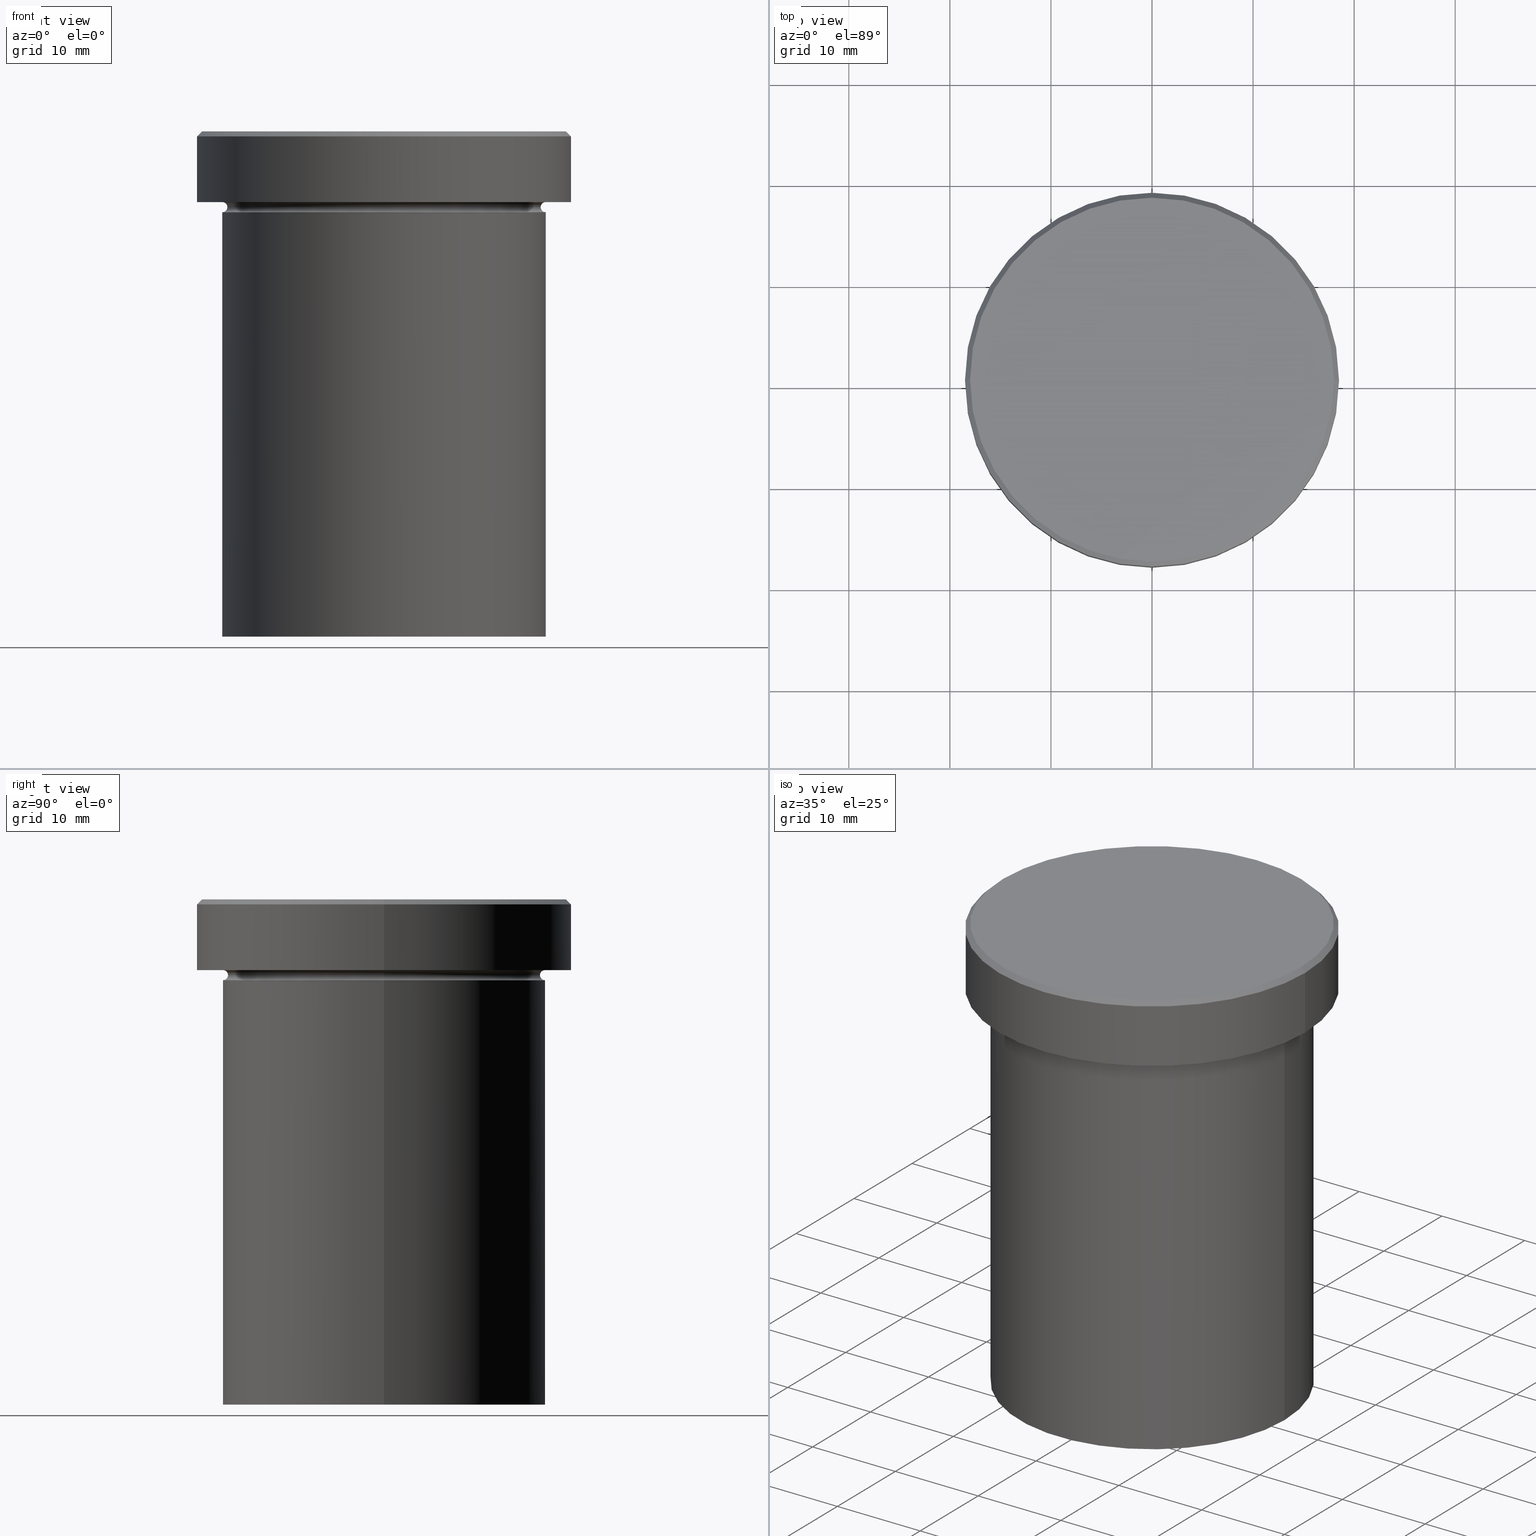
[diagram: canonical four-view strip — front | top / right | iso, engineering-drawing reading convention]
A machine part, canonical four-view strip (front | top / right | iso — engineering-drawing reading convention). The complete STEP part file that produces these views, byte-faithful:
ISO-10303-21;
HEADER;
FILE_DESCRIPTION (( 'STEP AP203' ),
    '1' );
FILE_NAME ('8fc4.STEP',
    '2024-01-02T19:16:12',
    ( '' ),
    ( '' ),
    'SwSTEP 2.0',
    'SolidWorks 2019',
    '' );
FILE_SCHEMA (( 'CONFIG_CONTROL_DESIGN' ));
ENDSEC;

DATA;
#1 = DIRECTION ( 'NONE',  ( -0.000000000000000000, -0.000000000000000000, 1.000000000000000000 ) ) ;
#2 = CIRCLE ( 'NONE', #320, 0.5000000000000004441 ) ;
#3 = AXIS2_PLACEMENT_3D ( 'NONE', #208, #327, #11 ) ;
#4 = CARTESIAN_POINT ( 'NONE',  ( 0.000000000000000000, 0.000000000000000000, 0.000000000000000000 ) ) ;
#5 = ORIENTED_EDGE ( 'NONE', *, *, #288, .T. ) ;
#6 = ADVANCED_FACE ( 'NONE', ( #122 ), #212, .T. ) ;
#7 = CARTESIAN_POINT ( 'NONE',  ( 0.000000000000000000, 0.000000000000000000, -8.000000000000000000 ) ) ;
#8 = ORIENTED_EDGE ( 'NONE', *, *, #131, .F. ) ;
#9 = EDGE_LOOP ( 'NONE', ( #8, #111, #396, #192 ) ) ;
#10 = VERTEX_POINT ( 'NONE', #147 ) ;
#11 = DIRECTION ( 'NONE',  ( 1.000000000000000000, 0.000000000000000000, 0.000000000000000000 ) ) ;
#12 = CARTESIAN_POINT ( 'NONE',  ( -18.00000000000000355, 0.000000000000000000, 0.000000000000000000 ) ) ;
#13 = EDGE_CURVE ( 'NONE', #177, #10, #153, .T. ) ;
#14 = DIRECTION ( 'NONE',  ( -0.000000000000000000, -0.000000000000000000, 1.000000000000000000 ) ) ;
#15 = DIRECTION ( 'NONE',  ( 1.000000000000000000, 0.000000000000000000, 0.000000000000000000 ) ) ;
#16 = AXIS2_PLACEMENT_3D ( 'NONE', #338, #90, #201 ) ;
#17 = CC_DESIGN_DATE_AND_TIME_ASSIGNMENT ( #188, #125, ( #368 ) ) ;
#18 = CIRCLE ( 'NONE', #348, 18.50000000000000000 ) ;
#19 = CYLINDRICAL_SURFACE ( 'NONE', #377, 16.00000000000000000 ) ;
#20 = DIRECTION ( 'NONE',  ( -0.000000000000000000, -0.000000000000000000, 1.000000000000000000 ) ) ;
#21 = CIRCLE ( 'NONE', #299, 16.00000000000000000 ) ;
#22 = EDGE_CURVE ( 'NONE', #76, #79, #268, .T. ) ;
#23 = CARTESIAN_POINT ( 'NONE',  ( 0.000000000000000000, 0.000000000000000000, -0.5000000000000004441 ) ) ;
#24 = EDGE_LOOP ( 'NONE', ( #84, #140, #51, #175 ) ) ;
#25 = CARTESIAN_POINT ( 'NONE',  ( 0.000000000000000000, 0.000000000000000000, 0.000000000000000000 ) ) ;
#26 = VERTEX_POINT ( 'NONE', #305 ) ;
#27 = APPLICATION_PROTOCOL_DEFINITION ( 'international standard', 'config_control_design', 1994, #402 ) ;
#28 = FACE_OUTER_BOUND ( 'NONE', #9, .T. ) ;
#29 = CIRCLE ( 'NONE', #258, 16.00000000000000000 ) ;
#30 = PERSON_AND_ORGANIZATION ( #290, #216 ) ;
#31 = LINE ( 'NONE', #280, #141 ) ;
#32 = EDGE_CURVE ( 'NONE', #107, #296, #318, .T. ) ;
#33 = APPROVAL_STATUS ( 'not_yet_approved' ) ;
#34 = CARTESIAN_POINT ( 'NONE',  ( -16.00000000000000000, 1.959434878635765131E-15, -7.500000000000000000 ) ) ;
#35 = AXIS2_PLACEMENT_3D ( 'NONE', #38, #133, #249 ) ;
#36 = EDGE_CURVE ( 'NONE', #143, #10, #93, .T. ) ;
#37 = DATE_AND_TIME ( #69, #406 ) ;
#38 = CARTESIAN_POINT ( 'NONE',  ( 0.000000000000000000, 0.000000000000000000, -7.500000000000000000 ) ) ;
#39 = DESIGN_CONTEXT ( 'detailed design', #392, 'design' ) ;
#40 = EDGE_CURVE ( 'NONE', #113, #177, #65, .T. ) ;
#41 = VECTOR ( 'NONE', #245, 1000.000000000000114 ) ;
#42 = CARTESIAN_POINT ( 'NONE',  ( 15.50000000000000000, 0.000000000000000000, -7.500000000000000000 ) ) ;
#43 = ORIENTED_EDGE ( 'NONE', *, *, #315, .F. ) ;
#44 = AXIS2_PLACEMENT_3D ( 'NONE', #25, #202, #309 ) ;
#45 = CC_DESIGN_SECURITY_CLASSIFICATION ( #187, ( #364 ) ) ;
#46 = TOROIDAL_SURFACE ( 'NONE', #75, 16.00000000000000000, 0.5000000000000000000 ) ;
#47 = DIRECTION ( 'NONE',  ( -1.000000000000000000, 0.000000000000000000, 0.000000000000000000 ) ) ;
#48 = ORIENTED_EDGE ( 'NONE', *, *, #110, .T. ) ;
#49 = ADVANCED_FACE ( 'NONE', ( #118 ), #375, .F. ) ;
#50 = EDGE_LOOP ( 'NONE', ( #358, #151 ) ) ;
#51 = ORIENTED_EDGE ( 'NONE', *, *, #155, .T. ) ;
#52 = AXIS2_PLACEMENT_3D ( 'NONE', #102, #161, #226 ) ;
#53 = CARTESIAN_POINT ( 'NONE',  ( 0.000000000000000000, 0.000000000000000000, -6.999999999999999112 ) ) ;
#54 = ORIENTED_EDGE ( 'NONE', *, *, #22, .F. ) ;
#55 = DIRECTION ( 'NONE',  ( 1.000000000000000000, 0.000000000000000000, 0.000000000000000000 ) ) ;
#56 = DIRECTION ( 'NONE',  ( -0.000000000000000000, -0.000000000000000000, 1.000000000000000000 ) ) ;
#57 = EDGE_LOOP ( 'NONE', ( #295, #303, #378, #298 ) ) ;
#58 = LOCAL_TIME ( 20, 16, 12.00000000000000000, #401 ) ;
#59 = DIRECTION ( 'NONE',  ( -0.000000000000000000, -0.000000000000000000, 1.000000000000000000 ) ) ;
#60 = VERTEX_POINT ( 'NONE', #181 ) ;
#61 = CARTESIAN_POINT ( 'NONE',  ( -16.00000000000000000, 0.000000000000000000, -7.500000000000000000 ) ) ;
#62 = MANIFOLD_SOLID_BREP ( 'Zkosen�1', #228 ) ;
#63 = ORIENTED_EDGE ( 'NONE', *, *, #22, .T. ) ;
#64 = DIRECTION ( 'NONE',  ( 1.000000000000000000, 0.000000000000000000, 0.000000000000000000 ) ) ;
#65 = CIRCLE ( 'NONE', #16, 18.00000000000000355 ) ;
#66 = CIRCLE ( 'NONE', #291, 16.00000000000000000 ) ;
#67 = PERSON_AND_ORGANIZATION_ROLE ( 'design_supplier' ) ;
#68 = AXIS2_PLACEMENT_3D ( 'NONE', #139, #1, #294 ) ;
#69 = CALENDAR_DATE ( 2024, 2, 1 ) ;
#70 = APPROVAL_ROLE ( '' ) ;
#71 = DIRECTION ( 'NONE',  ( 0.000000000000000000, 0.000000000000000000, -1.000000000000000000 ) ) ;
#72 = VECTOR ( 'NONE', #247, 1000.000000000000000 ) ;
#73 = FACE_OUTER_BOUND ( 'NONE', #57, .T. ) ;
#74 = ORIENTED_EDGE ( 'NONE', *, *, #32, .T. ) ;
#75 = AXIS2_PLACEMENT_3D ( 'NONE', #103, #313, #64 ) ;
#76 = VERTEX_POINT ( 'NONE', #399 ) ;
#77 = CC_DESIGN_PERSON_AND_ORGANIZATION_ASSIGNMENT ( #213, #67, ( #364 ) ) ;
#78 = CARTESIAN_POINT ( 'NONE',  ( -16.00000000000000000, 1.959434878635765131E-15, -8.000000000000000000 ) ) ;
#79 = VERTEX_POINT ( 'NONE', #207 ) ;
#80 = PRODUCT ( '8fc4', '8fc4', '', ( #220 ) ) ;
#81 = EDGE_CURVE ( 'NONE', #356, #60, #179, .T. ) ;
#82 = AXIS2_PLACEMENT_3D ( 'NONE', #335, #388, #340 ) ;
#83 = CARTESIAN_POINT ( 'NONE',  ( 16.00000000000000000, 0.000000000000000000, 0.000000000000000000 ) ) ;
#84 = ORIENTED_EDGE ( 'NONE', *, *, #13, .F. ) ;
#85 = AXIS2_PLACEMENT_3D ( 'NONE', #172, #86, #200 ) ;
#86 = DIRECTION ( 'NONE',  ( 0.000000000000000000, 0.000000000000000000, -1.000000000000000000 ) ) ;
#87 = ORIENTED_EDGE ( 'NONE', *, *, #342, .T. ) ;
#88 = PLANE ( 'NONE',  #85 ) ;
#89 = ORIENTED_EDGE ( 'NONE', *, *, #36, .T. ) ;
#90 = DIRECTION ( 'NONE',  ( -0.000000000000000000, -0.000000000000000000, 1.000000000000000000 ) ) ;
#91 = PRODUCT_RELATED_PRODUCT_CATEGORY ( 'detail', '', ( #80 ) ) ;
#92 = DIRECTION ( 'NONE',  ( -0.000000000000000000, -0.000000000000000000, 1.000000000000000000 ) ) ;
#93 = LINE ( 'NONE', #242, #346 ) ;
#94 = PERSON_AND_ORGANIZATION ( #290, #216 ) ;
#95 = CARTESIAN_POINT ( 'NONE',  ( 0.000000000000000000, 0.000000000000000000, 0.000000000000000000 ) ) ;
#96 = CIRCLE ( 'NONE', #319, 18.00000000000000355 ) ;
#97 = DIRECTION ( 'NONE',  ( 0.000000000000000000, 0.000000000000000000, 1.000000000000000000 ) ) ;
#98 = CARTESIAN_POINT ( 'NONE',  ( 0.000000000000000000, 0.000000000000000000, 0.000000000000000000 ) ) ;
#99 = TOROIDAL_SURFACE ( 'NONE', #104, 16.00000000000000000, 0.5000000000000000000 ) ;
#100 = PERSON_AND_ORGANIZATION_ROLE ( 'classification_officer' ) ;
#101 = DATE_AND_TIME ( #369, #129 ) ;
#102 = CARTESIAN_POINT ( 'NONE',  ( 16.00000000000000000, 1.959434878635765131E-15, -7.500000000000000000 ) ) ;
#103 = CARTESIAN_POINT ( 'NONE',  ( 0.000000000000000000, 0.000000000000000000, -7.500000000000000000 ) ) ;
#104 = AXIS2_PLACEMENT_3D ( 'NONE', #109, #232, #196 ) ;
#105 = DIRECTION ( 'NONE',  ( 0.000000000000000000, 0.000000000000000000, -1.000000000000000000 ) ) ;
#106 = ORIENTED_EDGE ( 'NONE', *, *, #404, .T. ) ;
#107 = VERTEX_POINT ( 'NONE', #331 ) ;
#108 = AXIS2_PLACEMENT_3D ( 'NONE', #301, #312, #267 ) ;
#109 = CARTESIAN_POINT ( 'NONE',  ( 0.000000000000000000, 0.000000000000000000, -7.500000000000000000 ) ) ;
#110 = EDGE_CURVE ( 'NONE', #10, #60, #334, .T. ) ;
#111 = ORIENTED_EDGE ( 'NONE', *, *, #224, .T. ) ;
#112 = ORIENTED_EDGE ( 'NONE', *, *, #243, .T. ) ;
#113 = VERTEX_POINT ( 'NONE', #12 ) ;
#114 = CARTESIAN_POINT ( 'NONE',  ( 0.000000000000000000, 0.000000000000000000, -50.00000000000000000 ) ) ;
#115 = CARTESIAN_POINT ( 'NONE',  ( 0.000000000000000000, 0.000000000000000000, -0.5000000000000004441 ) ) ;
#116 = LOCAL_TIME ( 20, 16, 12.00000000000000000, #157 ) ;
#117 = DIRECTION ( 'NONE',  ( 0.000000000000000000, -1.000000000000000000, 0.000000000000000000 ) ) ;
#118 = FACE_OUTER_BOUND ( 'NONE', #353, .T. ) ;
#119 =( LENGTH_UNIT ( ) NAMED_UNIT ( * ) SI_UNIT ( .MILLI., .METRE. ) );
#120 = ORIENTED_EDGE ( 'NONE', *, *, #350, .T. ) ;
#121 = CARTESIAN_POINT ( 'NONE',  ( 0.000000000000000000, 0.000000000000000000, -6.999999999999999112 ) ) ;
#122 = FACE_OUTER_BOUND ( 'NONE', #50, .T. ) ;
#123 = AXIS2_PLACEMENT_3D ( 'NONE', #233, #244, #152 ) ;
#124 = DIRECTION ( 'NONE',  ( 0.000000000000000000, -0.000000000000000000, 1.000000000000000000 ) ) ;
#125 = DATE_TIME_ROLE ( 'creation_date' ) ;
#126 = APPROVAL_STATUS ( 'not_yet_approved' ) ;
#127 = DIRECTION ( 'NONE',  ( -0.000000000000000000, -0.000000000000000000, 1.000000000000000000 ) ) ;
#128 = CIRCLE ( 'NONE', #351, 15.50000000000000000 ) ;
#129 = LOCAL_TIME ( 20, 16, 12.00000000000000000, #248 ) ;
#130 = PERSON_AND_ORGANIZATION ( #290, #216 ) ;
#131 = EDGE_CURVE ( 'NONE', #384, #231, #128, .T. ) ;
#132 = CC_DESIGN_APPROVAL ( #379, ( #368 ) ) ;
#133 = DIRECTION ( 'NONE',  ( 0.000000000000000000, 0.000000000000000000, -1.000000000000000000 ) ) ;
#134 = CALENDAR_DATE ( 2024, 2, 1 ) ;
#135 = CARTESIAN_POINT ( 'NONE',  ( 18.00000000000000355, 2.234980408443919609E-15, 0.000000000000000000 ) ) ;
#136 = EDGE_LOOP ( 'NONE', ( #325, #63, #386, #43 ) ) ;
#137 = CARTESIAN_POINT ( 'NONE',  ( 0.000000000000000000, 0.000000000000000000, -6.999999999999999112 ) ) ;
#138 = CC_DESIGN_PERSON_AND_ORGANIZATION_ASSIGNMENT ( #130, #366, ( #364 ) ) ;
#139 = CARTESIAN_POINT ( 'NONE',  ( 0.000000000000000000, 0.000000000000000000, 0.000000000000000000 ) ) ;
#140 = ORIENTED_EDGE ( 'NONE', *, *, #40, .F. ) ;
#141 = VECTOR ( 'NONE', #252, 1000.000000000000114 ) ;
#142 = EDGE_LOOP ( 'NONE', ( #112, #265, #227, #259 ) ) ;
#143 = VERTEX_POINT ( 'NONE', #271 ) ;
#144 = DIRECTION ( 'NONE',  ( -0.000000000000000000, -1.000000000000000000, -0.000000000000000000 ) ) ;
#145 = CARTESIAN_POINT ( 'NONE',  ( 0.000000000000000000, 0.000000000000000000, -7.500000000000000000 ) ) ;
#146 = CARTESIAN_POINT ( 'NONE',  ( -18.50000000000000000, 2.265596578422603396E-15, -6.999999999999999112 ) ) ;
#147 = CARTESIAN_POINT ( 'NONE',  ( 18.50000000000000000, 0.000000000000000000, -0.5000000000000004441 ) ) ;
#148 = CIRCLE ( 'NONE', #371, 0.5000000000000004441 ) ;
#149 = ADVANCED_FACE ( 'NONE', ( #390 ), #205, .F. ) ;
#150 = DIRECTION ( 'NONE',  ( 1.000000000000000000, 0.000000000000000000, 0.000000000000000000 ) ) ;
#151 = ORIENTED_EDGE ( 'NONE', *, *, #345, .T. ) ;
#152 = DIRECTION ( 'NONE',  ( 1.000000000000000000, 0.000000000000000000, 0.000000000000000000 ) ) ;
#153 = LINE ( 'NONE', #394, #41 ) ;
#154 = FACE_OUTER_BOUND ( 'NONE', #190, .T. ) ;
#155 = EDGE_CURVE ( 'NONE', #113, #60, #31, .T. ) ;
#156 = LOCAL_TIME ( 20, 16, 12.00000000000000000, #370 ) ;
#157 = COORDINATED_UNIVERSAL_TIME_OFFSET ( 1, 0, .AHEAD. ) ;
#158 = DATE_TIME_ROLE ( 'classification_date' ) ;
#159 = EDGE_CURVE ( 'NONE', #231, #107, #246, .T. ) ;
#160 = CALENDAR_DATE ( 2024, 2, 1 ) ;
#161 = DIRECTION ( 'NONE',  ( -1.224646799147353207E-16, 1.000000000000000000, 0.000000000000000000 ) ) ;
#162 = PRODUCT_DEFINITION_SHAPE ( 'NONE', 'NONE',  #368 ) ;
#163 = CARTESIAN_POINT ( 'NONE',  ( -16.00000000000000000, 1.959434878635765131E-15, 0.000000000000000000 ) ) ;
#164 = CONICAL_SURFACE ( 'NONE', #239, 18.00000000000000355, 0.7853981633974447263 ) ;
#165 = ADVANCED_FACE ( 'NONE', ( #287 ), #214, .T. ) ;
#166 = AXIS2_PLACEMENT_3D ( 'NONE', #373, #97, #253 ) ;
#167 = CYLINDRICAL_SURFACE ( 'NONE', #68, 18.50000000000000000 ) ;
#168 = ORIENTED_EDGE ( 'NONE', *, *, #342, .F. ) ;
#169 = ORIENTED_EDGE ( 'NONE', *, *, #250, .T. ) ;
#170 = EDGE_LOOP ( 'NONE', ( #362, #333, #352, #261 ) ) ;
#171 = AXIS2_PLACEMENT_3D ( 'NONE', #53, #274, #387 ) ;
#172 = CARTESIAN_POINT ( 'NONE',  ( 0.000000000000000000, 16.00000000000000000, -50.00000000000000000 ) ) ;
#173 = DIRECTION ( 'NONE',  ( -1.000000000000000000, 0.000000000000000000, 0.000000000000000000 ) ) ;
#174 = DIRECTION ( 'NONE',  ( -0.000000000000000000, -0.000000000000000000, 1.000000000000000000 ) ) ;
#175 = ORIENTED_EDGE ( 'NONE', *, *, #110, .F. ) ;
#176 = CARTESIAN_POINT ( 'NONE',  ( 16.00000000000000000, 0.000000000000000000, -7.500000000000000000 ) ) ;
#177 = VERTEX_POINT ( 'NONE', #135 ) ;
#178 = CYLINDRICAL_SURFACE ( 'NONE', #123, 16.00000000000000000 ) ;
#179 = LINE ( 'NONE', #310, #72 ) ;
#180 = DIRECTION ( 'NONE',  ( 1.000000000000000000, 0.000000000000000000, 0.000000000000000000 ) ) ;
#181 = CARTESIAN_POINT ( 'NONE',  ( -18.50000000000000000, 2.265596578422603396E-15, -0.5000000000000004441 ) ) ;
#182 = CIRCLE ( 'NONE', #183, 18.50000000000000000 ) ;
#183 = AXIS2_PLACEMENT_3D ( 'NONE', #137, #385, #382 ) ;
#184 = DATE_AND_TIME ( #344, #116 ) ;
#185 = CARTESIAN_POINT ( 'NONE',  ( 0.000000000000000000, 18.50000000000000000, -6.999999999999999112 ) ) ;
#186 = APPROVAL_DATE_TIME ( #101, #221 ) ;
#187 = SECURITY_CLASSIFICATION ( '', '', #316 ) ;
#188 = DATE_AND_TIME ( #134, #58 ) ;
#189 = ADVANCED_BREP_SHAPE_REPRESENTATION ( '8fc4', ( #62, #166 ), #292 ) ;
#190 = EDGE_LOOP ( 'NONE', ( #106, #169, #323, #209 ) ) ;
#191 = DIRECTION ( 'NONE',  ( -0.000000000000000000, -0.000000000000000000, 1.000000000000000000 ) ) ;
#192 = ORIENTED_EDGE ( 'NONE', *, *, #281, .F. ) ;
#193 = ADVANCED_FACE ( 'NONE', ( #223, #219 ), #347, .T. ) ;
#194 = ORIENTED_EDGE ( 'NONE', *, *, #273, .T. ) ;
#195 = AXIS2_PLACEMENT_3D ( 'NONE', #278, #365, #173 ) ;
#196 = DIRECTION ( 'NONE',  ( 1.000000000000000000, 0.000000000000000000, 0.000000000000000000 ) ) ;
#197 = ORIENTED_EDGE ( 'NONE', *, *, #159, .F. ) ;
#198 = CC_DESIGN_APPROVAL ( #230, ( #187 ) ) ;
#199 = CONICAL_SURFACE ( 'NONE', #44, 18.00000000000000355, 0.7853981633974447263 ) ;
#200 = DIRECTION ( 'NONE',  ( -1.000000000000000000, 0.000000000000000000, -0.000000000000000000 ) ) ;
#201 = DIRECTION ( 'NONE',  ( 1.000000000000000000, 0.000000000000000000, 0.000000000000000000 ) ) ;
#202 = DIRECTION ( 'NONE',  ( 0.000000000000000000, 0.000000000000000000, -1.000000000000000000 ) ) ;
#203 = CC_DESIGN_PERSON_AND_ORGANIZATION_ASSIGNMENT ( #222, #282, ( #80 ) ) ;
#204 = ORIENTED_EDGE ( 'NONE', *, *, #81, .F. ) ;
#205 = TOROIDAL_SURFACE ( 'NONE', #35, 16.00000000000000000, 0.5000000000000000000 ) ;
#206 =( NAMED_UNIT ( * ) SI_UNIT ( $, .STERADIAN. ) SOLID_ANGLE_UNIT ( ) );
#207 = CARTESIAN_POINT ( 'NONE',  ( 16.00000000000000000, 0.000000000000000000, -50.00000000000000000 ) ) ;
#208 = CARTESIAN_POINT ( 'NONE',  ( 0.000000000000000000, 0.000000000000000000, -7.500000000000000000 ) ) ;
#209 = ORIENTED_EDGE ( 'NONE', *, *, #286, .F. ) ;
#210 = ADVANCED_FACE ( 'NONE', ( #28 ), #46, .F. ) ;
#211 = APPROVAL_STATUS ( 'not_yet_approved' ) ;
#212 = PLANE ( 'NONE',  #341 ) ;
#213 = PERSON_AND_ORGANIZATION ( #290, #216 ) ;
#214 = CYLINDRICAL_SURFACE ( 'NONE', #372, 18.50000000000000000 ) ;
#215 = AXIS2_PLACEMENT_3D ( 'NONE', #34, #343, #376 ) ;
#216 = ORGANIZATION ( 'NEUR�EN�', 'NEUR�EN�', '' ) ;
#217 = APPROVAL_ROLE ( '' ) ;
#218 = VECTOR ( 'NONE', #191, 1000.000000000000000 ) ;
#219 = FACE_OUTER_BOUND ( 'NONE', #380, .T. ) ;
#220 = MECHANICAL_CONTEXT ( 'NONE', #402, 'mechanical' ) ;
#221 = APPROVAL ( #33, 'NEUR�EN�' ) ;
#222 = PERSON_AND_ORGANIZATION ( #290, #216 ) ;
#223 = FACE_BOUND ( 'NONE', #275, .T. ) ;
#224 = EDGE_CURVE ( 'NONE', #384, #234, #272, .T. ) ;
#225 = CC_DESIGN_APPROVAL ( #221, ( #364 ) ) ;
#226 = DIRECTION ( 'NONE',  ( -1.000000000000000000, -1.224646799147349509E-16, 0.000000000000000000 ) ) ;
#227 = ORIENTED_EDGE ( 'NONE', *, *, #397, .T. ) ;
#228 = CLOSED_SHELL ( 'NONE', ( #235, #149, #210, #322, #165, #408, #6, #256, #193, #324, #257, #49, #326 ) ) ;
#229 = ORIENTED_EDGE ( 'NONE', *, *, #281, .T. ) ;
#230 = APPROVAL ( #126, 'NEUR�EN�' ) ;
#231 = VERTEX_POINT ( 'NONE', #42 ) ;
#232 = DIRECTION ( 'NONE',  ( -0.000000000000000000, -0.000000000000000000, 1.000000000000000000 ) ) ;
#233 = CARTESIAN_POINT ( 'NONE',  ( 0.000000000000000000, 0.000000000000000000, 0.000000000000000000 ) ) ;
#234 = VERTEX_POINT ( 'NONE', #78 ) ;
#235 = ADVANCED_FACE ( 'NONE', ( #73 ), #164, .T. ) ;
#236 = DIRECTION ( 'NONE',  ( 1.000000000000000000, 0.000000000000000000, 0.000000000000000000 ) ) ;
#237 = AXIS2_PLACEMENT_3D ( 'NONE', #121, #174, #269 ) ;
#238 = DIRECTION ( 'NONE',  ( -0.000000000000000000, -0.000000000000000000, 1.000000000000000000 ) ) ;
#239 = AXIS2_PLACEMENT_3D ( 'NONE', #4, #105, #47 ) ;
#240 = DIRECTION ( 'NONE',  ( 0.000000000000000000, 0.000000000000000000, -1.000000000000000000 ) ) ;
#241 = ORIENTED_EDGE ( 'NONE', *, *, #243, .F. ) ;
#242 = CARTESIAN_POINT ( 'NONE',  ( 18.50000000000000000, 0.000000000000000000, 0.000000000000000000 ) ) ;
#243 = EDGE_CURVE ( 'NONE', #143, #356, #182, .T. ) ;
#244 = DIRECTION ( 'NONE',  ( -0.000000000000000000, -0.000000000000000000, 1.000000000000000000 ) ) ;
#245 = DIRECTION ( 'NONE',  ( 0.7071067811865451302, 8.659560562354903276E-17, -0.7071067811865500152 ) ) ;
#246 = CIRCLE ( 'NONE', #52, 0.5000000000000004441 ) ;
#247 = DIRECTION ( 'NONE',  ( -0.000000000000000000, -0.000000000000000000, 1.000000000000000000 ) ) ;
#248 = COORDINATED_UNIVERSAL_TIME_OFFSET ( 1, 0, .AHEAD. ) ;
#249 = DIRECTION ( 'NONE',  ( -1.000000000000000000, 0.000000000000000000, 0.000000000000000000 ) ) ;
#250 = EDGE_CURVE ( 'NONE', #76, #234, #260, .T. ) ;
#251 = APPROVAL_ROLE ( '' ) ;
#252 = DIRECTION ( 'NONE',  ( -0.7071067811865451302, 0.000000000000000000, -0.7071067811865500152 ) ) ;
#253 = DIRECTION ( 'NONE',  ( 1.000000000000000000, 0.000000000000000000, 0.000000000000000000 ) ) ;
#254 = VECTOR ( 'NONE', #92, 1000.000000000000000 ) ;
#255 = SHAPE_DEFINITION_REPRESENTATION ( #162, #189 ) ;
#256 = ADVANCED_FACE ( 'NONE', ( #289 ), #167, .T. ) ;
#257 = ADVANCED_FACE ( 'NONE', ( #262 ), #99, .F. ) ;
#258 = AXIS2_PLACEMENT_3D ( 'NONE', #114, #395, #236 ) ;
#259 = ORIENTED_EDGE ( 'NONE', *, *, #36, .F. ) ;
#260 = LINE ( 'NONE', #163, #218 ) ;
#261 = ORIENTED_EDGE ( 'NONE', *, *, #350, .F. ) ;
#262 = FACE_OUTER_BOUND ( 'NONE', #383, .T. ) ;
#263 = CC_DESIGN_DATE_AND_TIME_ASSIGNMENT ( #37, #158, ( #187 ) ) ;
#264 = ORIENTED_EDGE ( 'NONE', *, *, #400, .T. ) ;
#265 = ORIENTED_EDGE ( 'NONE', *, *, #81, .T. ) ;
#266 = DIRECTION ( 'NONE',  ( 0.000000000000000000, 0.000000000000000000, -1.000000000000000000 ) ) ;
#267 = DIRECTION ( 'NONE',  ( 1.000000000000000000, 0.000000000000000000, 0.000000000000000000 ) ) ;
#268 = CIRCLE ( 'NONE', #108, 16.00000000000000000 ) ;
#269 = DIRECTION ( 'NONE',  ( 1.000000000000000000, 0.000000000000000000, 0.000000000000000000 ) ) ;
#270 = CIRCLE ( 'NONE', #3, 15.50000000000000000 ) ;
#271 = CARTESIAN_POINT ( 'NONE',  ( 18.50000000000000000, 0.000000000000000000, -6.999999999999999112 ) ) ;
#272 = CIRCLE ( 'NONE', #215, 0.5000000000000004441 ) ;
#273 = EDGE_CURVE ( 'NONE', #26, #234, #21, .T. ) ;
#274 = DIRECTION ( 'NONE',  ( -0.000000000000000000, -0.000000000000000000, 1.000000000000000000 ) ) ;
#275 = EDGE_LOOP ( 'NONE', ( #264, #74 ) ) ;
#276 = DIRECTION ( 'NONE',  ( 0.000000000000000000, 0.000000000000000000, -1.000000000000000000 ) ) ;
#277 = CARTESIAN_POINT ( 'NONE',  ( 0.000000000000000000, 0.000000000000000000, 0.000000000000000000 ) ) ;
#278 = CARTESIAN_POINT ( 'NONE',  ( 0.000000000000000000, 0.000000000000000000, -6.999999999999999112 ) ) ;
#279 = APPROVAL_DATE_TIME ( #184, #379 ) ;
#280 = CARTESIAN_POINT ( 'NONE',  ( -18.00000000000000355, 0.000000000000000000, 0.000000000000000000 ) ) ;
#281 = EDGE_CURVE ( 'NONE', #231, #26, #2, .T. ) ;
#282 = PERSON_AND_ORGANIZATION_ROLE ( 'design_owner' ) ;
#283 = UNCERTAINTY_MEASURE_WITH_UNIT (LENGTH_MEASURE( 1.000000000000000082E-05 ), #119, 'distance_accuracy_value', 'NONE');
#284 = APPLICATION_PROTOCOL_DEFINITION ( 'international standard', 'config_control_design', 1994, #392 ) ;
#285 = DATE_AND_TIME ( #160, #156 ) ;
#286 = EDGE_CURVE ( 'NONE', #79, #26, #302, .T. ) ;
#287 = FACE_OUTER_BOUND ( 'NONE', #142, .T. ) ;
#288 = EDGE_CURVE ( 'NONE', #356, #143, #307, .T. ) ;
#289 = FACE_OUTER_BOUND ( 'NONE', #328, .T. ) ;
#290 = PERSON ( 'NEUR�EN�', 'NEUR�EN�', 'NEUR�EN�', ('NEUR�EN�'), ('NEUR�EN�'), ('NEUR�EN�') ) ;
#291 = AXIS2_PLACEMENT_3D ( 'NONE', #311, #59, #361 ) ;
#292 =( GEOMETRIC_REPRESENTATION_CONTEXT ( 3 ) GLOBAL_UNCERTAINTY_ASSIGNED_CONTEXT ( ( #283 ) ) GLOBAL_UNIT_ASSIGNED_CONTEXT ( ( #119, #332, #206 ) ) REPRESENTATION_CONTEXT ( 'NONE', 'WORKASPACE' ) );
#293 = ORIENTED_EDGE ( 'NONE', *, *, #288, .F. ) ;
#294 = DIRECTION ( 'NONE',  ( 1.000000000000000000, 0.000000000000000000, 0.000000000000000000 ) ) ;
#295 = ORIENTED_EDGE ( 'NONE', *, *, #345, .F. ) ;
#296 = VERTEX_POINT ( 'NONE', #330 ) ;
#297 = APPROVAL_PERSON_ORGANIZATION ( #403, #230, #251 ) ;
#298 = ORIENTED_EDGE ( 'NONE', *, *, #155, .F. ) ;
#299 = AXIS2_PLACEMENT_3D ( 'NONE', #7, #56, #300 ) ;
#300 = DIRECTION ( 'NONE',  ( 1.000000000000000000, 0.000000000000000000, 0.000000000000000000 ) ) ;
#301 = CARTESIAN_POINT ( 'NONE',  ( 0.000000000000000000, 0.000000000000000000, -50.00000000000000000 ) ) ;
#302 = LINE ( 'NONE', #83, #254 ) ;
#303 = ORIENTED_EDGE ( 'NONE', *, *, #13, .T. ) ;
#304 = APPROVAL_PERSON_ORGANIZATION ( #405, #221, #70 ) ;
#305 = CARTESIAN_POINT ( 'NONE',  ( 16.00000000000000000, 0.000000000000000000, -8.000000000000000000 ) ) ;
#306 = APPROVAL_PERSON_ORGANIZATION ( #374, #379, #217 ) ;
#307 = CIRCLE ( 'NONE', #237, 18.50000000000000000 ) ;
#308 = CC_DESIGN_PERSON_AND_ORGANIZATION_ASSIGNMENT ( #94, #407, ( #368 ) ) ;
#309 = DIRECTION ( 'NONE',  ( -1.000000000000000000, 0.000000000000000000, 0.000000000000000000 ) ) ;
#310 = CARTESIAN_POINT ( 'NONE',  ( -18.50000000000000000, 2.265596578422603396E-15, 0.000000000000000000 ) ) ;
#311 = CARTESIAN_POINT ( 'NONE',  ( 0.000000000000000000, 0.000000000000000000, -8.000000000000000000 ) ) ;
#312 = DIRECTION ( 'NONE',  ( -0.000000000000000000, -0.000000000000000000, 1.000000000000000000 ) ) ;
#313 = DIRECTION ( 'NONE',  ( -0.000000000000000000, -0.000000000000000000, 1.000000000000000000 ) ) ;
#314 = COORDINATED_UNIVERSAL_TIME_OFFSET ( 1, 0, .AHEAD. ) ;
#315 = EDGE_CURVE ( 'NONE', #234, #26, #66, .T. ) ;
#316 = SECURITY_CLASSIFICATION_LEVEL ( 'unclassified' ) ;
#317 = DIRECTION ( 'NONE',  ( -1.000000000000000000, 0.000000000000000000, -0.000000000000000000 ) ) ;
#318 = CIRCLE ( 'NONE', #195, 16.00000000000000000 ) ;
#319 = AXIS2_PLACEMENT_3D ( 'NONE', #337, #14, #389 ) ;
#320 = AXIS2_PLACEMENT_3D ( 'NONE', #176, #117, #393 ) ;
#321 = EDGE_LOOP ( 'NONE', ( #349, #54 ) ) ;
#322 = ADVANCED_FACE ( 'NONE', ( #154 ), #19, .T. ) ;
#323 = ORIENTED_EDGE ( 'NONE', *, *, #273, .F. ) ;
#324 = ADVANCED_FACE ( 'NONE', ( #363 ), #178, .T. ) ;
#325 = ORIENTED_EDGE ( 'NONE', *, *, #250, .F. ) ;
#326 = ADVANCED_FACE ( 'NONE', ( #355 ), #199, .T. ) ;
#327 = DIRECTION ( 'NONE',  ( -0.000000000000000000, -0.000000000000000000, 1.000000000000000000 ) ) ;
#328 = EDGE_LOOP ( 'NONE', ( #204, #5, #89, #48 ) ) ;
#329 = CIRCLE ( 'NONE', #171, 16.00000000000000000 ) ;
#330 = CARTESIAN_POINT ( 'NONE',  ( -16.00000000000000000, 0.000000000000000000, -6.999999999999999112 ) ) ;
#331 = CARTESIAN_POINT ( 'NONE',  ( 16.00000000000000000, 1.959434878635765131E-15, -6.999999999999999112 ) ) ;
#332 =( NAMED_UNIT ( * ) PLANE_ANGLE_UNIT ( ) SI_UNIT ( $, .RADIAN. ) );
#333 = ORIENTED_EDGE ( 'NONE', *, *, #159, .T. ) ;
#334 = CIRCLE ( 'NONE', #381, 18.50000000000000000 ) ;
#335 = CARTESIAN_POINT ( 'NONE',  ( 0.000000000000000000, 0.000000000000000000, -7.500000000000000000 ) ) ;
#336 = CC_DESIGN_PERSON_AND_ORGANIZATION_ASSIGNMENT ( #30, #100, ( #187 ) ) ;
#337 = CARTESIAN_POINT ( 'NONE',  ( 0.000000000000000000, 0.000000000000000000, 0.000000000000000000 ) ) ;
#338 = CARTESIAN_POINT ( 'NONE',  ( 0.000000000000000000, 0.000000000000000000, 0.000000000000000000 ) ) ;
#339 = APPROVAL_DATE_TIME ( #285, #230 ) ;
#340 = DIRECTION ( 'NONE',  ( -1.000000000000000000, 0.000000000000000000, 0.000000000000000000 ) ) ;
#341 = AXIS2_PLACEMENT_3D ( 'NONE', #95, #124, #15 ) ;
#342 = EDGE_CURVE ( 'NONE', #231, #384, #270, .T. ) ;
#343 = DIRECTION ( 'NONE',  ( 1.224646799147353207E-16, 1.000000000000000000, 0.000000000000000000 ) ) ;
#344 = CALENDAR_DATE ( 2024, 2, 1 ) ;
#345 = EDGE_CURVE ( 'NONE', #177, #113, #96, .T. ) ;
#346 = VECTOR ( 'NONE', #20, 1000.000000000000000 ) ;
#347 = PLANE ( 'NONE',  #391 ) ;
#348 = AXIS2_PLACEMENT_3D ( 'NONE', #23, #240, #150 ) ;
#349 = ORIENTED_EDGE ( 'NONE', *, *, #404, .F. ) ;
#350 = EDGE_CURVE ( 'NONE', #384, #296, #148, .T. ) ;
#351 = AXIS2_PLACEMENT_3D ( 'NONE', #145, #238, #55 ) ;
#352 = ORIENTED_EDGE ( 'NONE', *, *, #400, .F. ) ;
#353 = EDGE_LOOP ( 'NONE', ( #197, #87, #120, #360 ) ) ;
#354 = ORIENTED_EDGE ( 'NONE', *, *, #224, .F. ) ;
#355 = FACE_OUTER_BOUND ( 'NONE', #24, .T. ) ;
#356 = VERTEX_POINT ( 'NONE', #146 ) ;
#357 = FACE_OUTER_BOUND ( 'NONE', #321, .T. ) ;
#358 = ORIENTED_EDGE ( 'NONE', *, *, #40, .T. ) ;
#359 = CARTESIAN_POINT ( 'NONE',  ( -15.50000000000000000, 1.928818708657081344E-15, -7.500000000000000000 ) ) ;
#360 = ORIENTED_EDGE ( 'NONE', *, *, #32, .F. ) ;
#361 = DIRECTION ( 'NONE',  ( 1.000000000000000000, 0.000000000000000000, 0.000000000000000000 ) ) ;
#362 = ORIENTED_EDGE ( 'NONE', *, *, #131, .T. ) ;
#363 = FACE_OUTER_BOUND ( 'NONE', #136, .T. ) ;
#364 = PRODUCT_DEFINITION_FORMATION_WITH_SPECIFIED_SOURCE ( 'LIBOVOLN�', '', #80, .NOT_KNOWN. ) ;
#365 = DIRECTION ( 'NONE',  ( -0.000000000000000000, -0.000000000000000000, 1.000000000000000000 ) ) ;
#366 = PERSON_AND_ORGANIZATION_ROLE ( 'creator' ) ;
#367 = DIRECTION ( 'NONE',  ( 1.000000000000000000, 0.000000000000000000, 0.000000000000000000 ) ) ;
#368 = PRODUCT_DEFINITION ( 'NEZN�M�', '', #364, #39 ) ;
#369 = CALENDAR_DATE ( 2024, 2, 1 ) ;
#370 = COORDINATED_UNIVERSAL_TIME_OFFSET ( 1, 0, .AHEAD. ) ;
#371 = AXIS2_PLACEMENT_3D ( 'NONE', #61, #144, #266 ) ;
#372 = AXIS2_PLACEMENT_3D ( 'NONE', #98, #127, #409 ) ;
#373 = CARTESIAN_POINT ( 'NONE',  ( 0.000000000000000000, 0.000000000000000000, 0.000000000000000000 ) ) ;
#374 = PERSON_AND_ORGANIZATION ( #290, #216 ) ;
#375 = TOROIDAL_SURFACE ( 'NONE', #82, 16.00000000000000000, 0.5000000000000000000 ) ;
#376 = DIRECTION ( 'NONE',  ( -1.000000000000000000, 1.224646799147349509E-16, 0.000000000000000000 ) ) ;
#377 = AXIS2_PLACEMENT_3D ( 'NONE', #277, #398, #180 ) ;
#378 = ORIENTED_EDGE ( 'NONE', *, *, #397, .F. ) ;
#379 = APPROVAL ( #211, 'NEUR�EN�' ) ;
#380 = EDGE_LOOP ( 'NONE', ( #241, #293 ) ) ;
#381 = AXIS2_PLACEMENT_3D ( 'NONE', #115, #276, #367 ) ;
#382 = DIRECTION ( 'NONE',  ( 1.000000000000000000, 0.000000000000000000, 0.000000000000000000 ) ) ;
#383 = EDGE_LOOP ( 'NONE', ( #354, #168, #229, #194 ) ) ;
#384 = VERTEX_POINT ( 'NONE', #359 ) ;
#385 = DIRECTION ( 'NONE',  ( -0.000000000000000000, -0.000000000000000000, 1.000000000000000000 ) ) ;
#386 = ORIENTED_EDGE ( 'NONE', *, *, #286, .T. ) ;
#387 = DIRECTION ( 'NONE',  ( -1.000000000000000000, 0.000000000000000000, 0.000000000000000000 ) ) ;
#388 = DIRECTION ( 'NONE',  ( 0.000000000000000000, 0.000000000000000000, -1.000000000000000000 ) ) ;
#389 = DIRECTION ( 'NONE',  ( 1.000000000000000000, 0.000000000000000000, 0.000000000000000000 ) ) ;
#390 = FACE_OUTER_BOUND ( 'NONE', #170, .T. ) ;
#391 = AXIS2_PLACEMENT_3D ( 'NONE', #185, #71, #317 ) ;
#392 = APPLICATION_CONTEXT ( 'configuration controlled 3d designs of mechanical parts and assemblies' ) ;
#393 = DIRECTION ( 'NONE',  ( 0.000000000000000000, 0.000000000000000000, -1.000000000000000000 ) ) ;
#394 = CARTESIAN_POINT ( 'NONE',  ( 18.00000000000000355, 2.204364238465235822E-15, 0.000000000000000000 ) ) ;
#395 = DIRECTION ( 'NONE',  ( -0.000000000000000000, -0.000000000000000000, 1.000000000000000000 ) ) ;
#396 = ORIENTED_EDGE ( 'NONE', *, *, #315, .T. ) ;
#397 = EDGE_CURVE ( 'NONE', #60, #10, #18, .T. ) ;
#398 = DIRECTION ( 'NONE',  ( -0.000000000000000000, -0.000000000000000000, 1.000000000000000000 ) ) ;
#399 = CARTESIAN_POINT ( 'NONE',  ( -16.00000000000000000, 1.959434878635765131E-15, -50.00000000000000000 ) ) ;
#400 = EDGE_CURVE ( 'NONE', #296, #107, #329, .T. ) ;
#401 = COORDINATED_UNIVERSAL_TIME_OFFSET ( 1, 0, .AHEAD. ) ;
#402 = APPLICATION_CONTEXT ( 'configuration controlled 3d designs of mechanical parts and assemblies' ) ;
#403 = PERSON_AND_ORGANIZATION ( #290, #216 ) ;
#404 = EDGE_CURVE ( 'NONE', #79, #76, #29, .T. ) ;
#405 = PERSON_AND_ORGANIZATION ( #290, #216 ) ;
#406 = LOCAL_TIME ( 20, 16, 12.00000000000000000, #314 ) ;
#407 = PERSON_AND_ORGANIZATION_ROLE ( 'creator' ) ;
#408 = ADVANCED_FACE ( 'NONE', ( #357 ), #88, .T. ) ;
#409 = DIRECTION ( 'NONE',  ( 1.000000000000000000, 0.000000000000000000, 0.000000000000000000 ) ) ;
ENDSEC;
END-ISO-10303-21;
